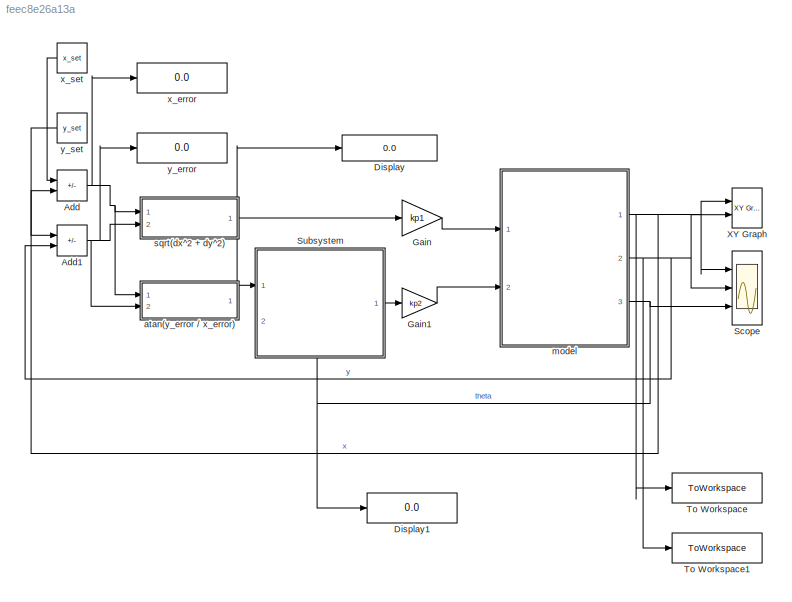
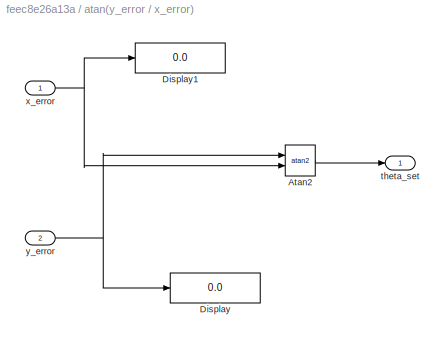
MODEL slx_feec8e26a13a
KIND model
CONFIG AbsTol = auto
CONFIG EnableMultiTasking = off
CONFIG FixedStep = 0.1
CONFIG MaxStep = auto
CONFIG MinStep = auto
CONFIG RelTol = 1e-3
CONFIG SampleTimeConstraint = Unconstrained
CONFIG Solver = ode4
CONFIG SolverName = ode4
CONFIG StartTime = 0.0
CONFIG StopTime = 15
BLOCK [Sum] Add
  IconShape = rectangular
  Inputs = +-
  Ports = [2, 1]
BLOCK [Sum] Add1
  IconShape = rectangular
  Inputs = +-
  Ports = [2, 1]
BLOCK [Display] Display
  Decimation = 1
  Format = short_e
  Ports = [1]
BLOCK [Display] Display1
  Decimation = 1
  Format = short_e
  Ports = [1]
BLOCK [Gain] Gain
  Gain = kp1
BLOCK [Gain] Gain1
  Gain = kp2
BLOCK [Scope] Scope
  Floating = off
  NumInputPorts = 3
  Ports = [3]
  ScopeSpecificationString = Simulink.scopes.TimeScopeBlockCfg('CurrentConfiguration', extmgr.ConfigurationSet(extmgr.Configuration('Core','General UI',true),extmgr.Configuration('Core','Source UI',true),extmgr.Configuration('Sources','WiredSimulink',true),extmgr.Configuration('Visuals','Time Domain',true,'SerializedDisplays',{struct('MinYLimReal','4.72862','MaxYLimReal','7.45925','YLabelReal','','MinYLimMag','4.72862','MaxYL...<+2632ch>
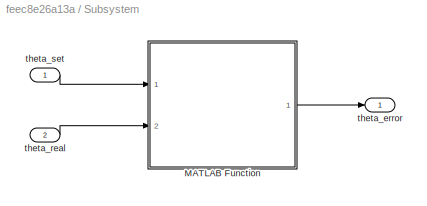
BLOCK [SubSystem] Subsystem
  PortSchema = {"entries":[{"content":{"sides":[{"content":{"connectorIds":["In1"]},"type":"ConnectorPlacement.EquallySpacedRectSide","uuid":"fc3d2d42-6b75-4455-93d0-24c477eba1e2"},{"content":{"connectorIds":["Out1"],"side":"RIGHT"},"type":"ConnectorPlacement.EquallySpacedRectSide","uuid":"640ab7b6-8e5c-42d1-9d7a-31c2e9c3df8c"},{"content":{"connectorIds":[],"side":"TOP"},"type":"ConnectorPlacement.EquallySpacedR...<+391ch>
  Ports = [2, 1]
  RequestExecContextInheritance = off
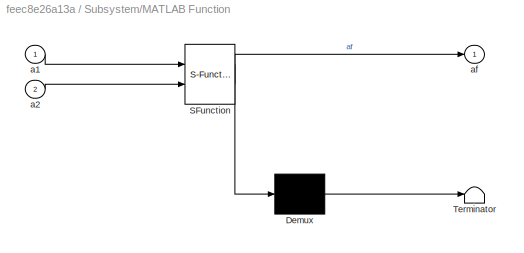
BLOCK [SubSystem] Subsystem/MATLAB Function
  ErrorFcn = Stateflow.Translate.translate
  PermitHierarchicalResolution = ExplicitOnly
  Ports = [2, 1]
  RequestExecContextInheritance = off
  SFBlockType = MATLAB Function
  TreatAsAtomicUnit = on
BLOCK [Demux] Subsystem/MATLAB Function/ Demux 
  Outputs = 1
  Ports = [1, 1]
BLOCK [S-Function] Subsystem/MATLAB Function/ SFunction 
  EnableBusSupport = on
  FunctionName = sf_sfun
  PortCounts = [2 2]
  Ports = [2, 2]
  SFcnIsStateOwnerBlock = off
  SFunctionDeploymentMode = off
  Tag = Stateflow S-Function 2
BLOCK [Terminator] Subsystem/MATLAB Function/ Terminator 
BLOCK [Inport] Subsystem/MATLAB Function/a1
BLOCK [Inport] Subsystem/MATLAB Function/a2
  Port = 2
BLOCK [Outport] Subsystem/MATLAB Function/af
BLOCK [Outport] Subsystem/theta_error
BLOCK [Inport] Subsystem/theta_real
  Port = 2
BLOCK [Inport] Subsystem/theta_set
BLOCK [ToWorkspace] To Workspace
  FixptAsFi = on
  MaxDataPoints = inf
  Ports = [1]
  SampleTime = -1
  Save2DSignal = 2-D array (concatenate along first dimension)
  VariableName = x
BLOCK [ToWorkspace] To Workspace1
  FixptAsFi = on
  MaxDataPoints = inf
  Ports = [1]
  SampleTime = -1
  Save2DSignal = 2-D array (concatenate along first dimension)
  VariableName = y
BLOCK [Reference] XY Graph  REF=simulink/Sinks/XY Graph
  Ports = [2]
  SourceBlock = simulink/Sinks/XY Graph
  SourceProductBaseCode = SL
  SourceType = XY scope.
BLOCK [SubSystem] atan(y_error // x_error)
  Ports = [2, 1]
  RequestExecContextInheritance = off
BLOCK [Trigonometry] atan(y_error // x_error)/Atan2
  Operator = atan2
  Ports = [2, 1]
BLOCK [Display] atan(y_error // x_error)/Display
  Decimation = 1
  Format = short_e
  Ports = [1]
BLOCK [Display] atan(y_error // x_error)/Display1
  Decimation = 1
  Format = short_e
  Ports = [1]
BLOCK [Outport] atan(y_error // x_error)/theta_set
BLOCK [Inport] atan(y_error // x_error)/x_error
BLOCK [Inport] atan(y_error // x_error)/y_error
  Port = 2
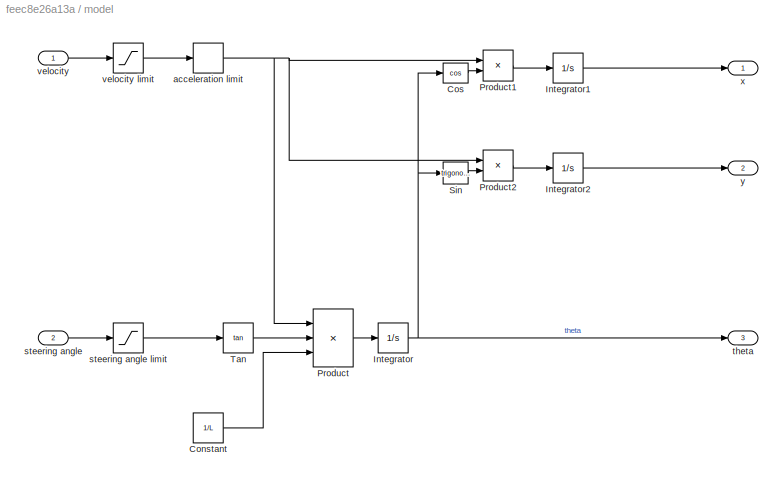
BLOCK [SubSystem] model
  Ports = [2, 3]
  RequestExecContextInheritance = off
BLOCK [Constant] model/Constant
  Value = 1/L
BLOCK [Trigonometry] model/Cos
  Operator = cos
  OutputSignalType = real
  Ports = [1, 1]
BLOCK [Integrator] model/Integrator
  InitialCondition = theta_start
  Ports = [1, 1]
BLOCK [Integrator] model/Integrator1
  InitialCondition = x_start
  Ports = [1, 1]
BLOCK [Integrator] model/Integrator2
  InitialCondition = y_start
  Ports = [1, 1]
BLOCK [Product] model/Product
  Inputs = 3
  Ports = [3, 1]
BLOCK [Product] model/Product1
  Ports = [2, 1]
BLOCK [Product] model/Product2
  Ports = [2, 1]
BLOCK [Trigonometry] model/Sin
  OutputSignalType = real
  Ports = [1, 1]
BLOCK [Trigonometry] model/Tan
  Operator = tan
  Ports = [1, 1]
BLOCK [RateLimiter] model/acceleration limit
  SampleTimeMode = inherited
BLOCK [Inport] model/steering angle
  Port = 2
BLOCK [Saturate] model/steering angle limit
  LinearizeAsGain = off
  LowerLimit = -1
  UpperLimit = 1
BLOCK [Outport] model/theta
  Port = 3
BLOCK [Inport] model/velocity
BLOCK [Saturate] model/velocity limit
  LowerLimit = -2
  UpperLimit = 2
BLOCK [Outport] model/x
BLOCK [Outport] model/y
  Port = 2
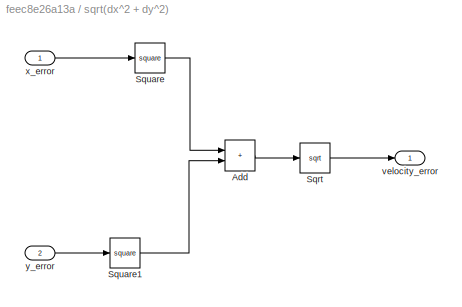
BLOCK [SubSystem] sqrt(dx^2 + dy^2)
  Ports = [2, 1]
  RequestExecContextInheritance = off
BLOCK [Sum] sqrt(dx^2 + dy^2)/Add
  IconShape = rectangular
  Ports = [2, 1]
BLOCK [Sqrt] sqrt(dx^2 + dy^2)/Sqrt
BLOCK [Math] sqrt(dx^2 + dy^2)/Square
  Operator = square
  Ports = [1, 1]
BLOCK [Math] sqrt(dx^2 + dy^2)/Square1
  Operator = square
  Ports = [1, 1]
BLOCK [Outport] sqrt(dx^2 + dy^2)/velocity_error
BLOCK [Inport] sqrt(dx^2 + dy^2)/x_error
BLOCK [Inport] sqrt(dx^2 + dy^2)/y_error
  Port = 2
BLOCK [Display] x_error
  Decimation = 1
  Format = short_e
  Ports = [1]
BLOCK [Constant] x_set
  NameLocation = top
  Value = x_set
BLOCK [Display] y_error
  Decimation = 1
  Format = short_e
  Ports = [1]
BLOCK [Constant] y_set
  NameLocation = top
  Value = y_set
NET Add1:1 -> atan(y_error // x_error):2, sqrt(dx^2 + dy^2):2, y_error:1
NET Add:1 -> atan(y_error // x_error):1, sqrt(dx^2 + dy^2):1, x_error:1
LINE Gain1:1 -> model:2
LINE Gain:1 -> model:1
LINE Subsystem/MATLAB Function:1 -> Subsystem/theta_error:1
LINE Subsystem/theta_real:1 -> Subsystem/MATLAB Function:2
LINE Subsystem/theta_set:1 -> Subsystem/MATLAB Function:1
LINE Subsystem:1 -> Gain1:1
LINE atan(y_error // x_error)/Atan2:1 -> atan(y_error // x_error)/theta_set:1
NET atan(y_error // x_error)/x_error:1 -> atan(y_error // x_error)/Atan2:2, atan(y_error // x_error)/Display1:1
NET atan(y_error // x_error)/y_error:1 -> atan(y_error // x_error)/Atan2:1, atan(y_error // x_error)/Display:1
NET atan(y_error // x_error):1 -> Display:1, Subsystem:1
LINE model/Constant:1 -> model/Product:3
LINE model/Cos:1 -> model/Product1:2
LINE model/Integrator1:1 -> model/x:1
LINE model/Integrator2:1 -> model/y:1
NET model/Integrator:1 -> model/Cos:1, model/Sin:1, model/theta:1
LINE model/Product1:1 -> model/Integrator1:1
LINE model/Product2:1 -> model/Integrator2:1
LINE model/Product:1 -> model/Integrator:1
LINE model/Sin:1 -> model/Product2:2
LINE model/Tan:1 -> model/Product:2
NET model/acceleration limit:1 -> model/Product1:1, model/Product2:1, model/Product:1
LINE model/steering angle limit:1 -> model/Tan:1
LINE model/steering angle:1 -> model/steering angle limit:1
LINE model/velocity limit:1 -> model/acceleration limit:1
LINE model/velocity:1 -> model/velocity limit:1
NET model:1 -> Add:2, Scope:1, To Workspace:1, XY Graph:1
NET model:2 -> Add1:2, Scope:2, To Workspace1:1, XY Graph:2
NET model:3 -> Display1:1, Scope:3, Subsystem:2
LINE sqrt(dx^2 + dy^2)/Add:1 -> sqrt(dx^2 + dy^2)/Sqrt:1
LINE sqrt(dx^2 + dy^2)/Sqrt:1 -> sqrt(dx^2 + dy^2)/velocity_error:1
LINE sqrt(dx^2 + dy^2)/Square1:1 -> sqrt(dx^2 + dy^2)/Add:2
LINE sqrt(dx^2 + dy^2)/Square:1 -> sqrt(dx^2 + dy^2)/Add:1
LINE sqrt(dx^2 + dy^2)/x_error:1 -> sqrt(dx^2 + dy^2)/Square:1
LINE sqrt(dx^2 + dy^2)/y_error:1 -> sqrt(dx^2 + dy^2)/Square1:1
LINE sqrt(dx^2 + dy^2):1 -> Gain:1
LINE x_set:1 -> Add:1
LINE y_set:1 -> Add1:1
note: NET lines group one-source signal fan-out (src -> all destinations, sorted); 1:1 wires keep LINE
CHART Subsystem/MATLAB Function states=1 transitions=1
  STATE_LABEL 'eML_blk_kernel()'
  STATE_LABEL 'SCRIPT:\nfunction af=angdif2(a1,a2)   % radians angles version\n%\n%   input : a1, a2\n% output: af\na3=mod(a1-a2,2*pi);\naf= 0;\nq1=pi/2;\nq2=pi;\nq3=3*pi/2;\nq4=2*pi;\n\nif (0<a3)&&(a3<=q1)\n    af=a3;\nelseif (q1<a3)&&(a3<=q2) \n     af=a3;\nelseif (q2<a3)&&(a3<=q3) \n    af=a3-q4;\nelseif (q3<a3)&&(a3<=q4) \n    af= a3-q4;\nelseif (-q1<=a3)&&(a3<0)    \n    af=a3;\nelseif (-q2<=a3)&&(a3<-q1) \n    af=a3;\nelseif (-q3...<+114ch>'
CHART  states=0 transitions=0
